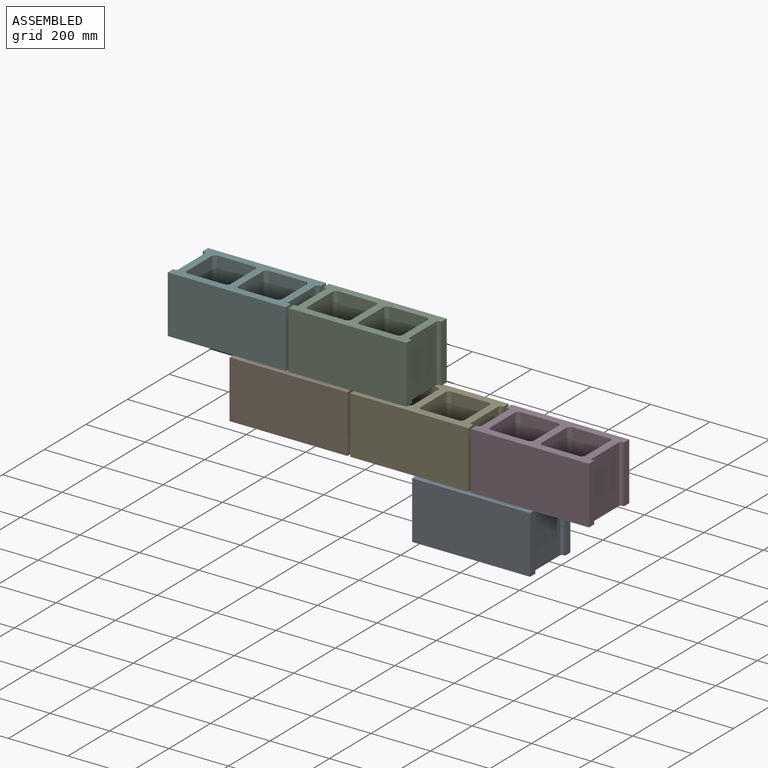
[diagram: assembled view]
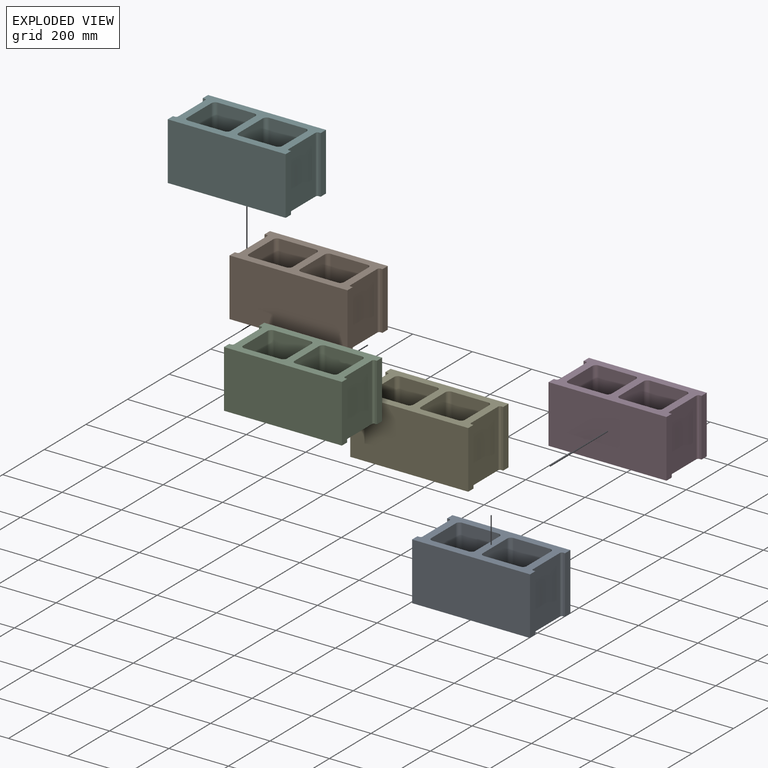
[diagram: exploded view]
GUIDED TOUR — MATED ASSEMBLY (Onshape document ac5938884970fd43bcc23c59, AutoMate assembly ac5938884970fd43bcc23c59_a05309ed8d6b21d57b8105df_1512f13c86c5d0458d538dba_default)

This assembly has 6 components, labeled P0..P5 below (a component is one placed occurrence of a part; the same part can appear more than once), held together by 5 mates. A mate is a constraint between two components; its type names the relative motion it leaves free:
  FASTENED — locks the two components together rigidly (no relative motion).
Axis/direction vectors are unit vectors and 'through' points are millimeter coordinates, both in the assembly's world frame.

MATES
  1. FASTENED "Fastened 2": P2 <-> P5, direction (0.000, -1.000, 0.000) through (18.18, -79.94, 115.96) mm
  2. FASTENED "Fastened 2": P3 <-> P4, direction (0.000, -1.000, 0.000) through (632.54, -79.94, -87.24) mm
  3. FASTENED "Fastened 1": P4 <-> P0, direction (0.000, 0.000, -1.000) through (424.58, 113.73, -87.24) mm
  4. FASTENED "Fastened 1": P5 <-> P1, direction (0.000, 0.000, -1.000) through (-189.78, 113.73, 115.96) mm
  5. FASTENED "Fastened 3": P4 <-> P1, direction (0.000, -1.000, 0.000) through (226.14, -79.94, 106.44) mm

ASSEMBLY ORDER
  1. P4 — the base component [order verified]
  2. P1 [order verified]
  3. P2 [order verified]
  4. P5 [order verified]
  5. P3 [order verified]
  6. P0 [order verified]
Order-tag legend:
  [order verified] — this step's position reverses a verified removal order: the component was checked to insert without passing through the ones already placed.

Of the 6 components, 6 carry the full construction recipe — the FeatureScript program that regenerates the part's solid from scratch; the rest are supplied as boundary geometry only.
Each toured component is shown spotlighted twice — in the assembled view, then in the exploded view, where a leader line traces a displaced component back to its assembled socket (saturated green if recipe-attached, orange if geometry-only; every other component desaturated gray) — followed by its recipe or geometry summary and the mates that hold it.
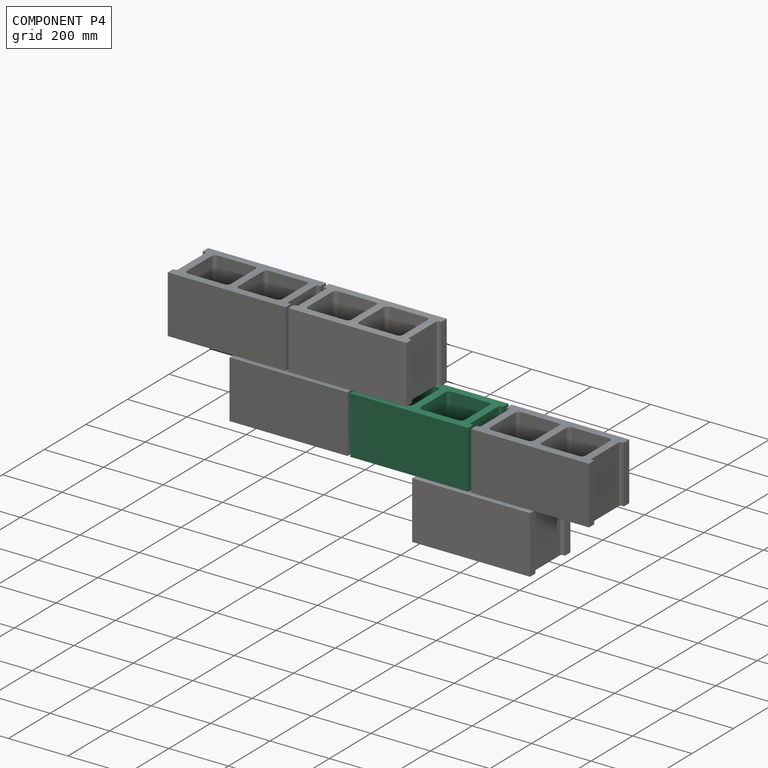
[diagram: component P4 — assembled]
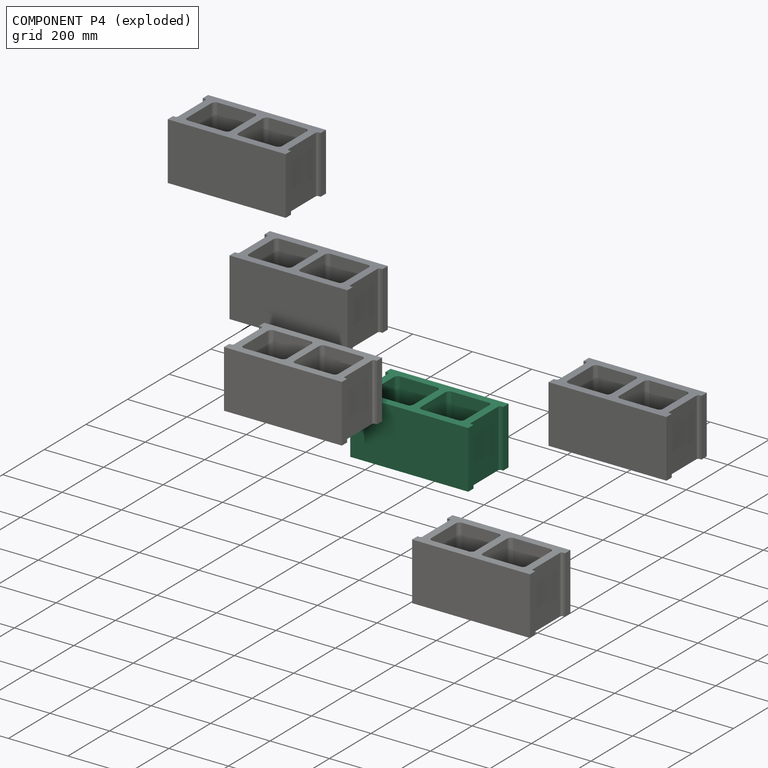
[diagram: component P4 — exploded]
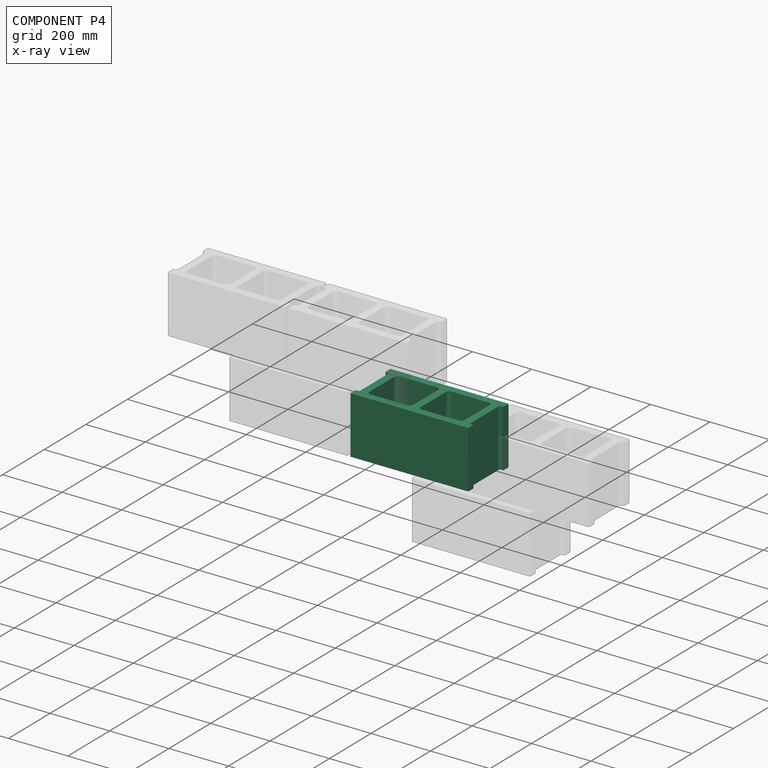
[diagram: component P4 — x-ray view]
COMPONENT P4 — same part as P0 (CADFS 00204169); its construction recipe is shown at P0.
Held by: FASTENED mate "Fastened 2" to P3; FASTENED mate "Fastened 1" to P0; FASTENED mate "Fastened 3" to P1.
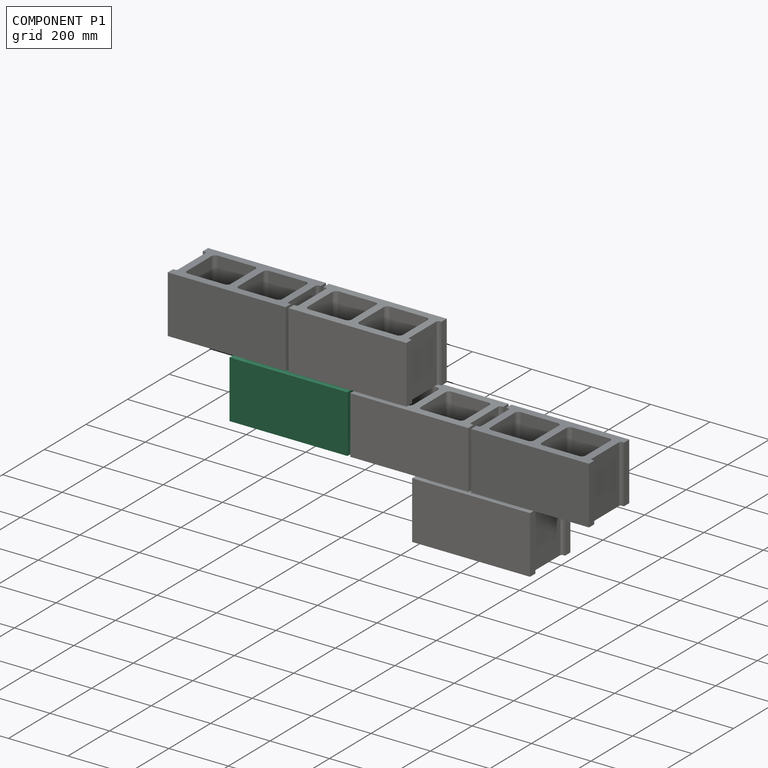
[diagram: component P1 — assembled]
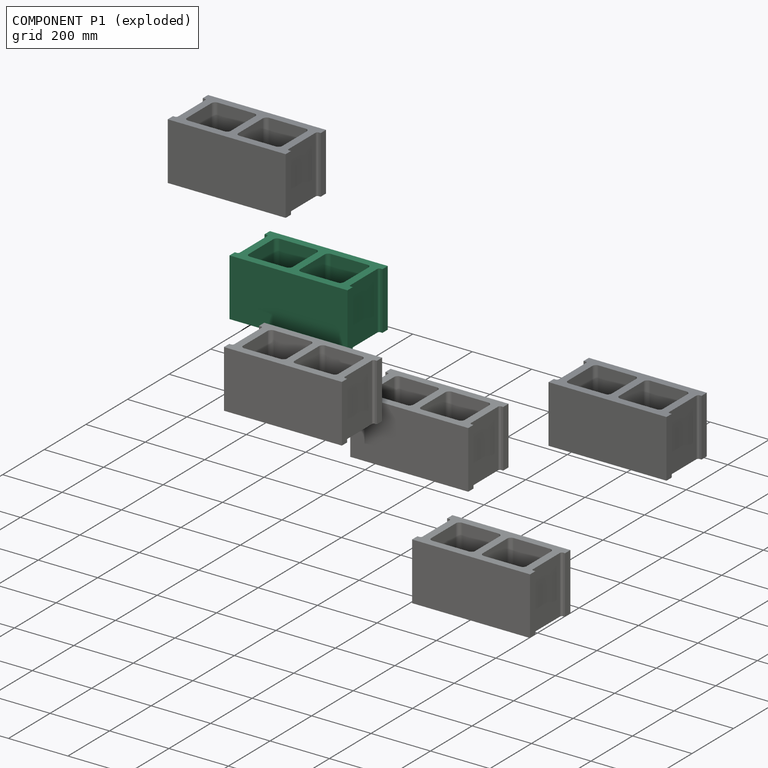
[diagram: component P1 — exploded]
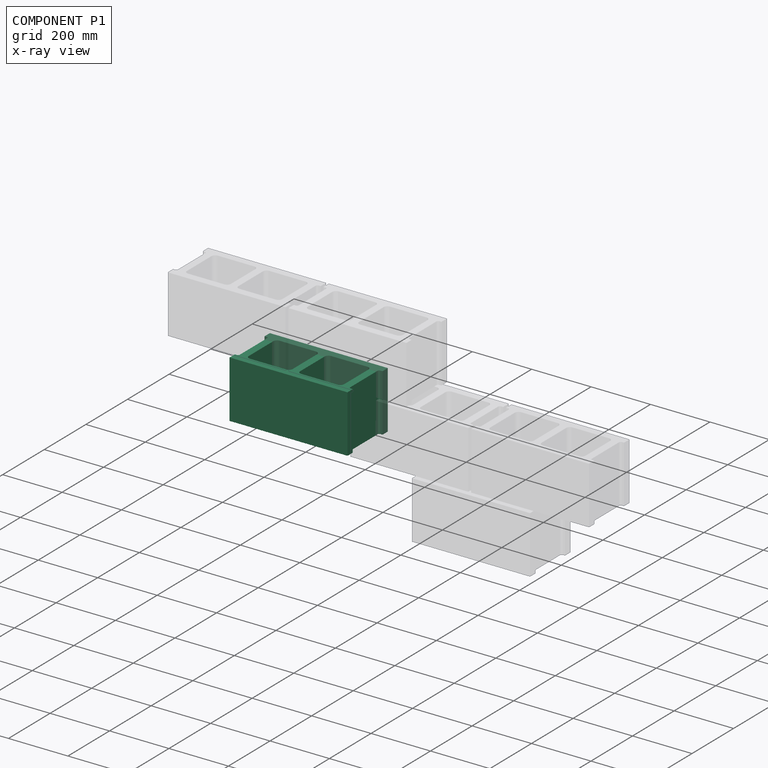
[diagram: component P1 — x-ray view]
COMPONENT P1 — same part as P0 (CADFS 00204169); its construction recipe is shown at P0.
Held by: FASTENED mate "Fastened 1" to P5; FASTENED mate "Fastened 3" to P4.
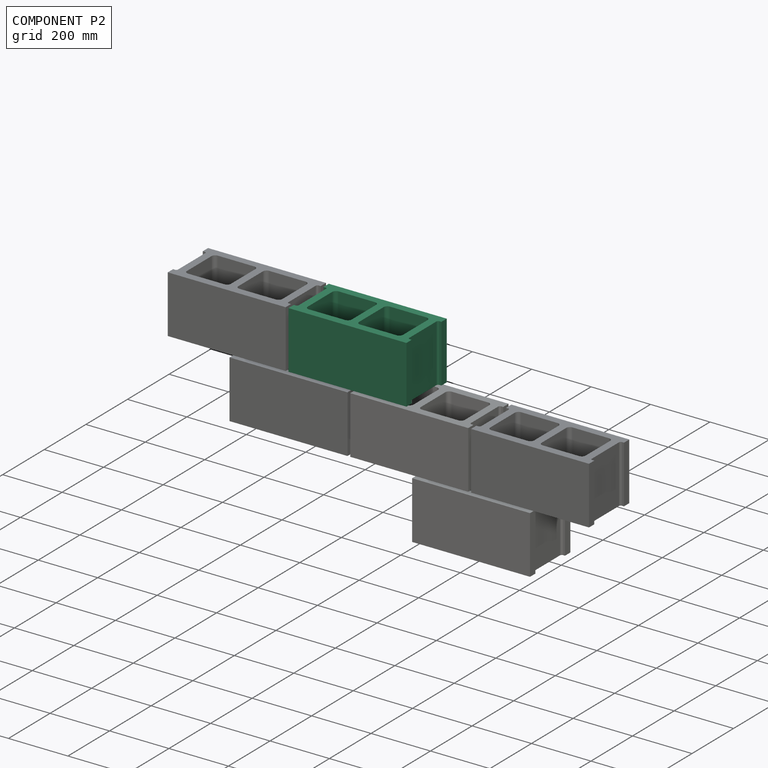
[diagram: component P2 — assembled]
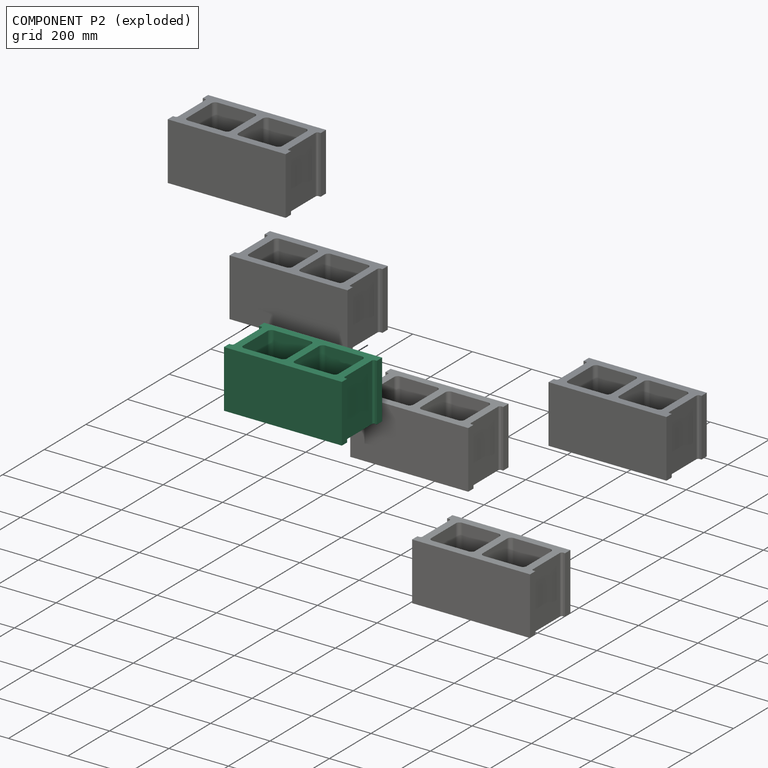
[diagram: component P2 — exploded]
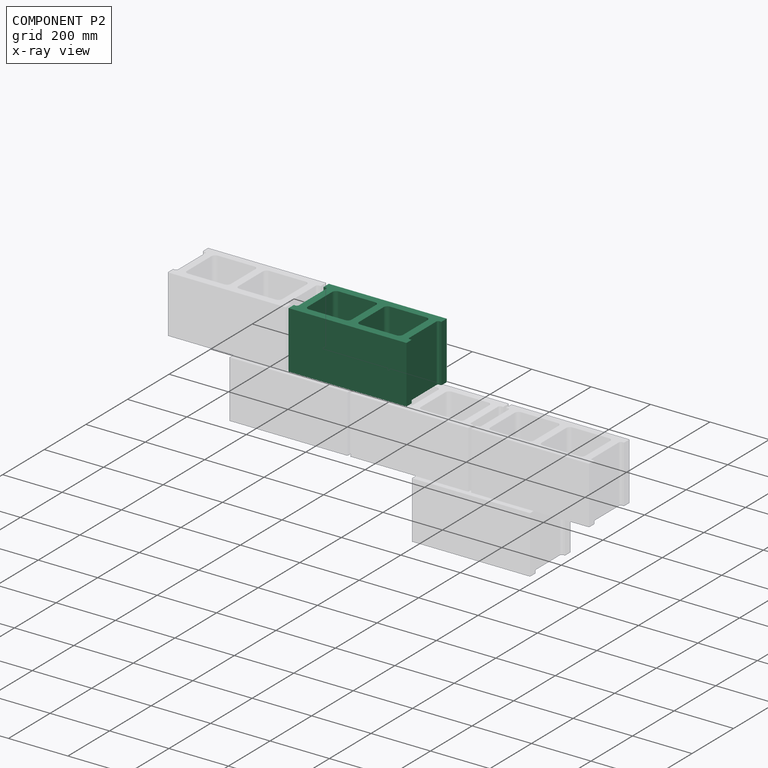
[diagram: component P2 — x-ray view]
COMPONENT P2 — same part as P0 (CADFS 00204169); its construction recipe is shown at P0.
Held by: FASTENED mate "Fastened 2" to P5.
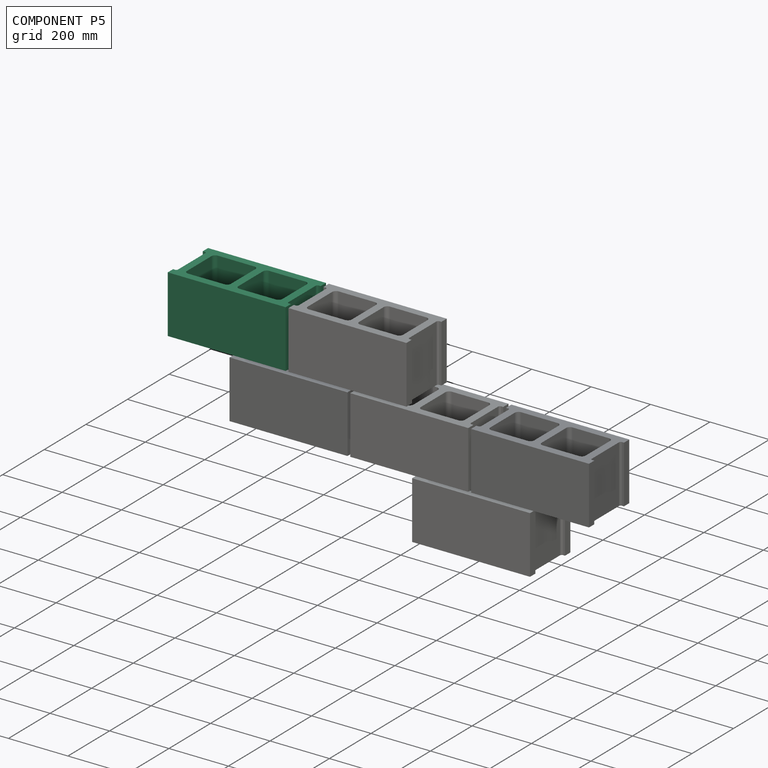
[diagram: component P5 — assembled]
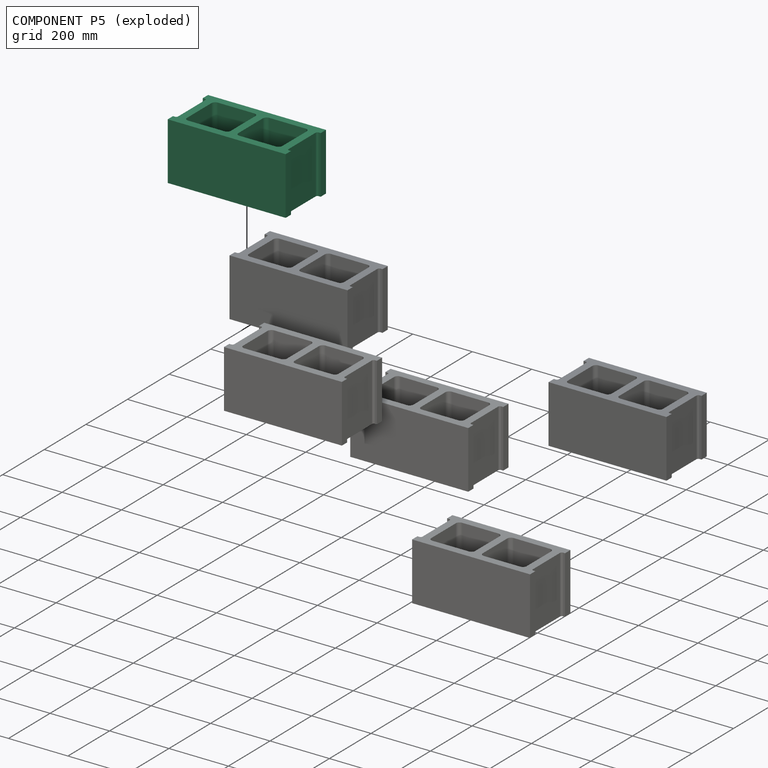
[diagram: component P5 — exploded]
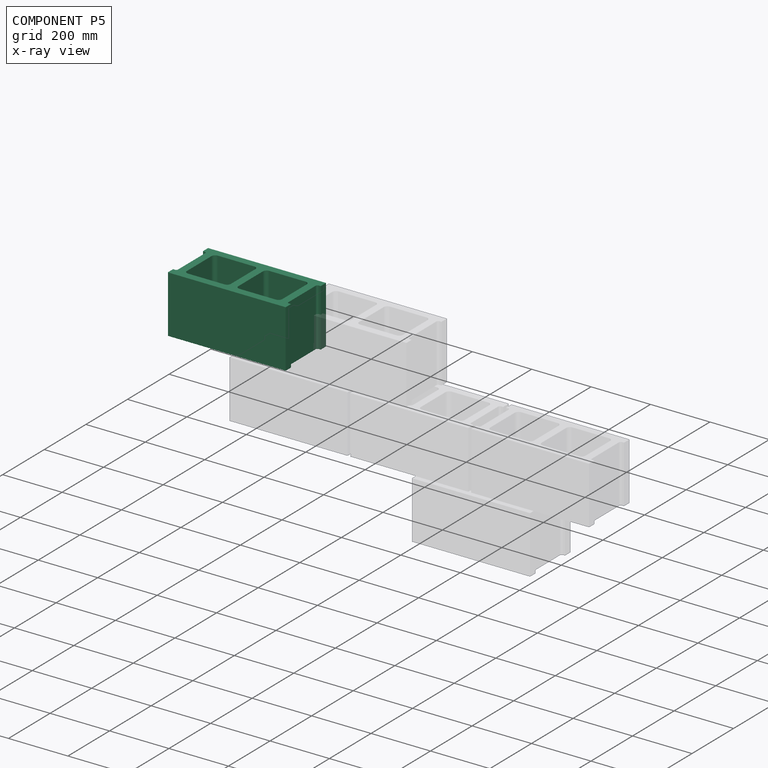
[diagram: component P5 — x-ray view]
COMPONENT P5 — same part as P0 (CADFS 00204169); its construction recipe is shown at P0.
Held by: FASTENED mate "Fastened 2" to P2; FASTENED mate "Fastened 1" to P1.
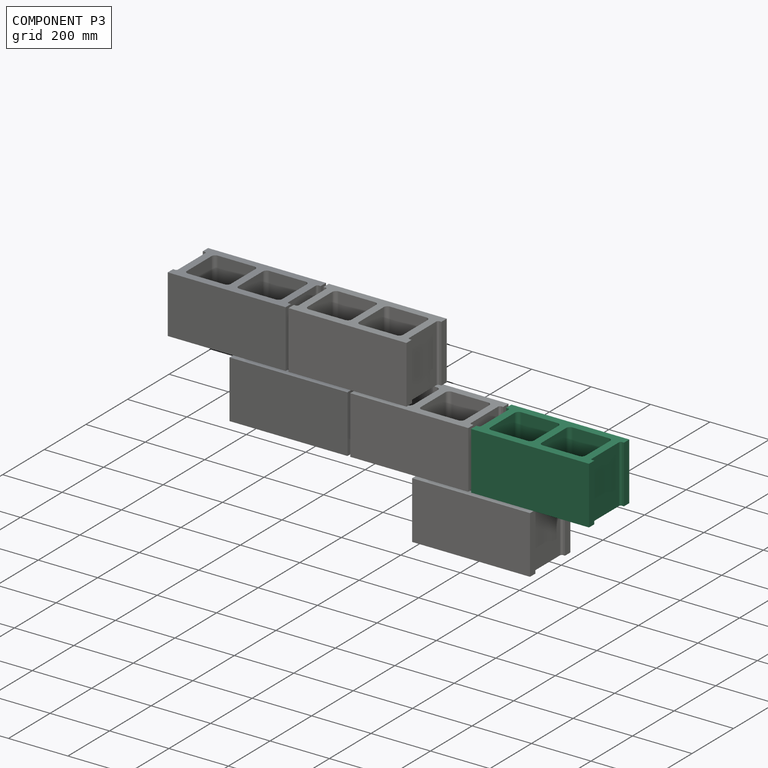
[diagram: component P3 — assembled]
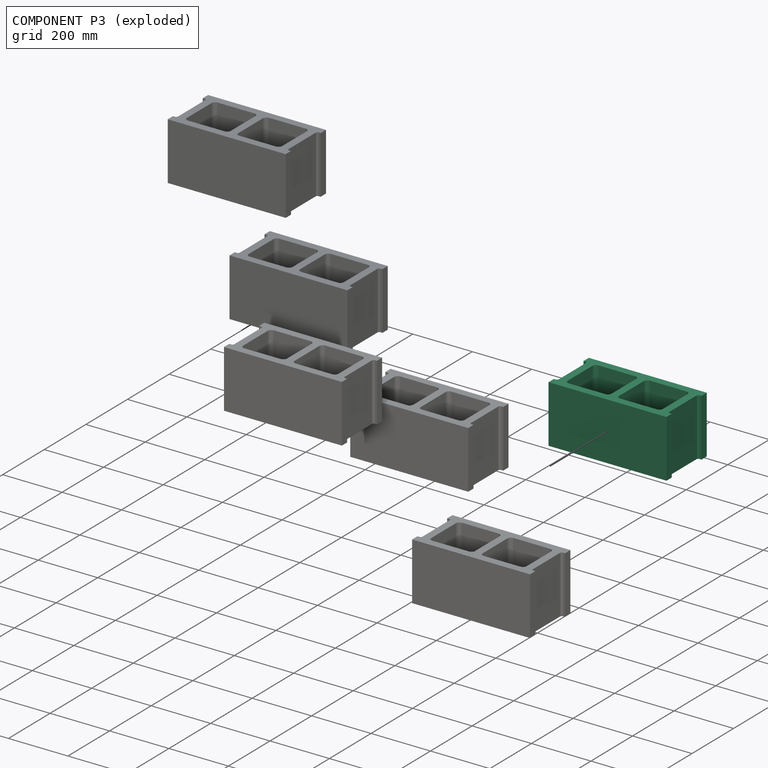
[diagram: component P3 — exploded]
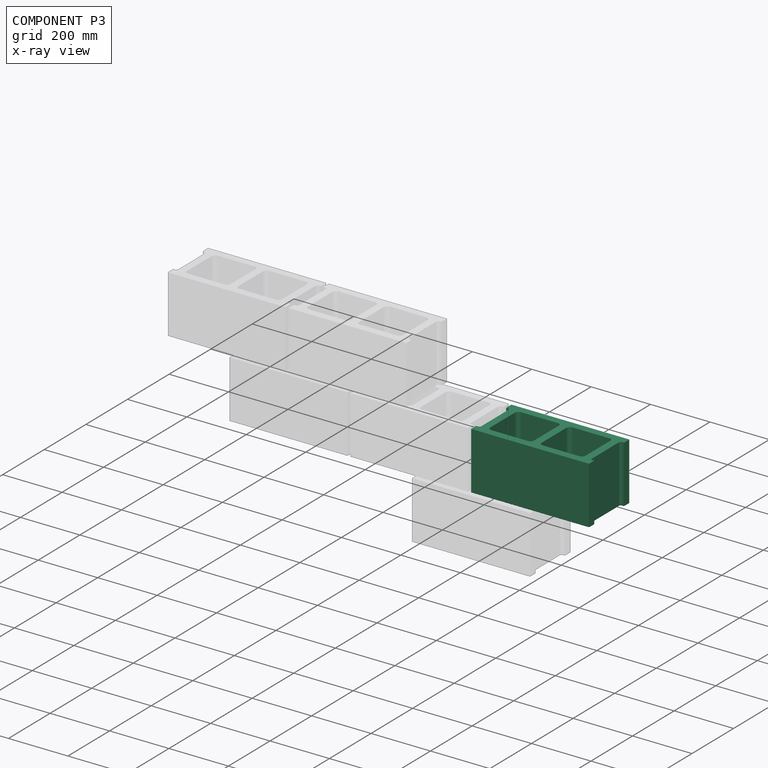
[diagram: component P3 — x-ray view]
COMPONENT P3 — same part as P0 (CADFS 00204169); its construction recipe is shown at P0.
Held by: FASTENED mate "Fastened 2" to P4.
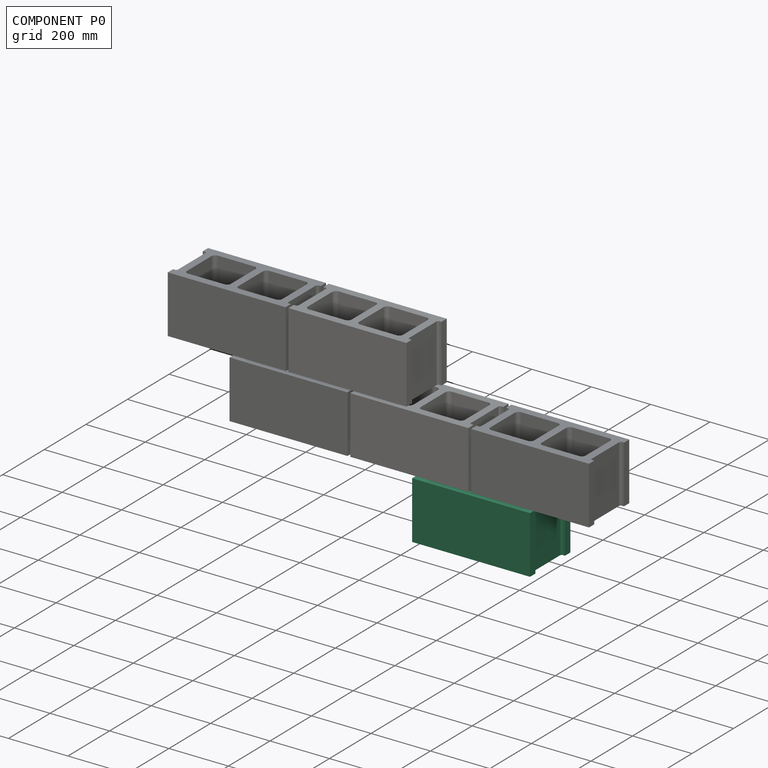
[diagram: component P0 — assembled]
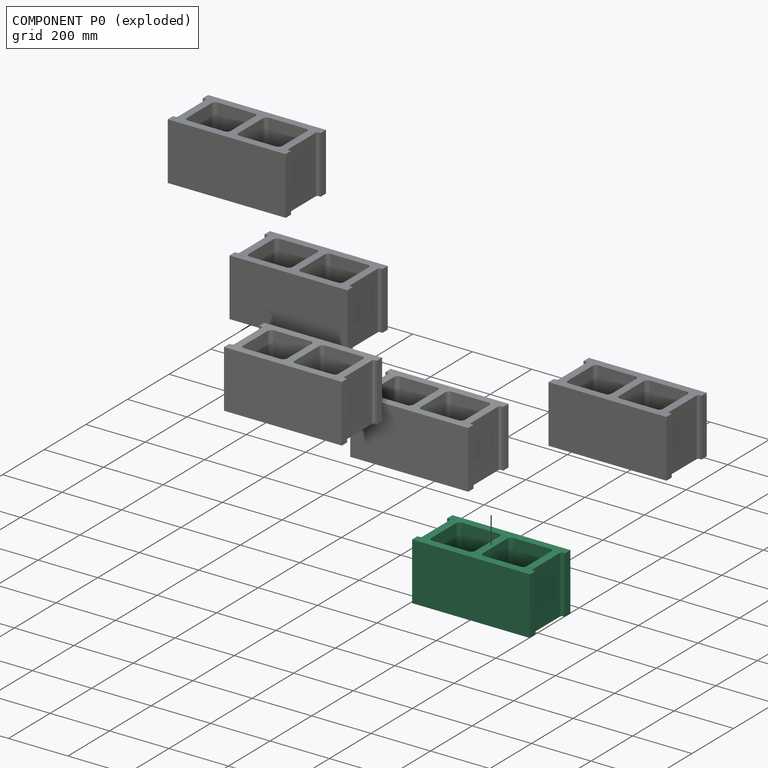
[diagram: component P0 — exploded]
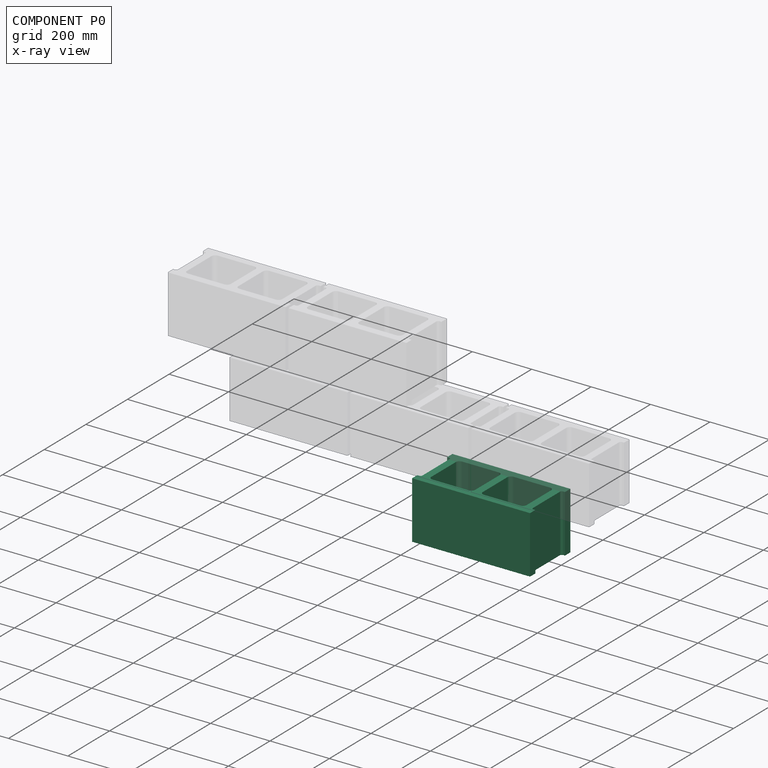
[diagram: component P0 — x-ray view]
COMPONENT P0 — recipe-attached (CADFS 00204169, mesh-verified: the recipe's output STEP matches this component's geometry to below the mesh-comparison resolution (tessellation chordal tolerance ~0.723 mm)).
Held by: FASTENED mate "Fastened 1" to P4.
Construction recipe (FeatureScript — the CAD program that rebuilds this solid; sketch coordinates are in the units given by the * unit suffixes, e.g. mm):

FeatureScript 1511;
import(path : "onshape/std/geometry.fs", version : "1511.0");
import(path : "onshape/std/common.fs", version : "1511.0");
const mm = millimeter;
const VERTEX = EntityType.VERTEX;
const EDGE = EntityType.EDGE;
const FACE = EntityType.FACE;
const BODY = EntityType.BODY;
function v(x, y){return vector(x, y);}
function OD(order){return orderDisambiguation(order);}
function OSD(set){return originalSetDisambiguation(set);}
function TD(topology){return topologyDisambiguation(topology);}
function TDD(query){return trueDependencyDisambiguation(query);}
function sQuery(a, b, c) {return sketchEntityQuery(a, b, c);}

annotation { "Feature Type Name" : "Feature", "Feature Type Description" : "" }
export const myFeature = defineFeature(function(context is Context, id is Id, definition is map)
    precondition{}
    {
        {
            var Q0;
            Q0=qCreatedBy(makeId("Top.planeOp"),FACE);
            var sketch = newSketch(context, id + "F0", { "sketchPlane" : qUnion([Q0])});
            skLineSegment(sketch, "E0", {"start": v(0, 0) * mm, "end": v(0, -25.4) * mm});
            skLineSegment(sketch, "E1", {"start": v(0, -193.67) * mm, "end": v(396.88, -193.67) * mm});
            skLineSegment(sketch, "E2", {"start": v(396.88, 0) * mm, "end": v(0, 0) * mm});
            skLineSegment(sketch, "E3.0", {"start": v(6.35, -25.4) * mm, "end": v(0, -25.4) * mm});
            skLineSegment(sketch, "E4.0", {"start": v(38.1, -96.84) * mm, "end": v(38.1, -155.58) * mm});
            skLineSegment(sketch, "E5.0", {"start": v(0, -168.28) * mm, "end": v(6.35, -168.28) * mm});
            skLineSegment(sketch, "E6.0", {"start": v(185.74, -38.1) * mm, "end": v(185.74, -155.58) * mm});
            skLineSegment(sketch, "E7.0", {"start": v(12.7, -31.75) * mm, "end": v(12.7, -161.93) * mm});
            skLineSegment(sketch, "E8", {"start": v(198.44, 0) * mm, "end": v(198.44, -193.67) * mm, "construction": true});
            skLineSegment(sketch, "E9", {"start": v(0, -96.84) * mm, "end": v(198.44, -96.84) * mm, "construction": true});
            skArc(sketch, "E10.filletArc", {"start": v(12.7, -31.75) * mm, "mid": v(10.84, -27.26) * mm, "end": v(6.35, -25.4) * mm});
            skArc(sketch, "E11.filletArc", {"start": v(6.35, -168.28) * mm, "mid": v(10.84, -166.42) * mm, "end": v(12.7, -161.93) * mm});
            skLineSegment(sketch, "E12", {"start": v(50.8, -25.4) * mm, "end": v(173.04, -25.4) * mm});
            skLineSegment(sketch, "E13", {"start": v(50.8, -168.28) * mm, "end": v(173.04, -168.28) * mm});
            skLineSegment(sketch, "E14", {"start": v(38.1, -96.84) * mm, "end": v(38.1, -38.1) * mm});
            skArc(sketch, "E15.filletArc", {"start": v(50.8, -25.4) * mm, "mid": v(41.82, -29.12) * mm, "end": v(38.1, -38.1) * mm});
            skArc(sketch, "E16.filletArc", {"start": v(38.1, -155.58) * mm, "mid": v(41.82, -164.56) * mm, "end": v(50.8, -168.28) * mm});
            skLineSegment(sketch, "E17.trimOffspring", {"start": v(0, -168.28) * mm, "end": v(0, -193.67) * mm});
            skArc(sketch, "E18.filletArc", {"start": v(185.74, -38.1) * mm, "mid": v(182.02, -29.12) * mm, "end": v(173.04, -25.4) * mm});
            skArc(sketch, "E19.filletArc", {"start": v(173.04, -168.28) * mm, "mid": v(182.02, -164.56) * mm, "end": v(185.74, -155.58) * mm});
            skArc(sketch, "E20.MirrorCS", {"start": v(390.53, -168.27) * mm, "mid": v(386.03, -166.42) * mm, "end": v(384.18, -161.92) * mm});
            skLineSegment(sketch, "E21.MirrorCS", {"start": v(396.88, -168.27) * mm, "end": v(390.53, -168.27) * mm});
            skArc(sketch, "E22.MirrorCS", {"start": v(384.18, -31.75) * mm, "mid": v(386.03, -27.26) * mm, "end": v(390.53, -25.4) * mm});
            skLineSegment(sketch, "E23.MirrorCS", {"start": v(390.53, -25.4) * mm, "end": v(396.88, -25.4) * mm});
            skArc(sketch, "E24.MirrorCS", {"start": v(358.78, -155.57) * mm, "mid": v(355.06, -164.56) * mm, "end": v(346.08, -168.27) * mm});
            skLineSegment(sketch, "E25.MirrorCS", {"start": v(346.08, -25.4) * mm, "end": v(223.84, -25.4) * mm});
            skLineSegment(sketch, "E26.MirrorCS", {"start": v(358.78, -96.84) * mm, "end": v(358.78, -38.1) * mm});
            skLineSegment(sketch, "E27.MirrorCS", {"start": v(396.88, 0) * mm, "end": v(396.88, -25.4) * mm});
            skArc(sketch, "E28.MirrorCS", {"start": v(346.08, -25.4) * mm, "mid": v(355.06, -29.12) * mm, "end": v(358.78, -38.1) * mm});
            skLineSegment(sketch, "E29.MirrorCS", {"start": v(384.18, -31.75) * mm, "end": v(384.18, -161.92) * mm});
            skArc(sketch, "E30.MirrorCS", {"start": v(223.84, -168.28) * mm, "mid": v(214.86, -164.56) * mm, "end": v(211.14, -155.58) * mm});
            skLineSegment(sketch, "E31.MirrorCS", {"start": v(358.78, -96.84) * mm, "end": v(358.78, -155.57) * mm});
            skArc(sketch, "E32.MirrorCS", {"start": v(211.14, -38.1) * mm, "mid": v(214.86, -29.12) * mm, "end": v(223.84, -25.4) * mm});
            skLineSegment(sketch, "E33.MirrorCS", {"start": v(346.08, -168.27) * mm, "end": v(223.84, -168.27) * mm});
            skLineSegment(sketch, "E34.MirrorCS", {"start": v(211.14, -38.1) * mm, "end": v(211.14, -155.58) * mm});
            skLineSegment(sketch, "E35.MirrorCS", {"start": v(396.88, -168.27) * mm, "end": v(396.88, -193.67) * mm});
            skSolve(sketch);
        }
        {
            var Q0;
            Q0=makeQuery(id+"F0.imprint","IMPRINT",FACE,{"disambiguationData":[TD([[makeQuery(id+"F0.imprint","IMPRINT",EDGE,{"derivedFrom":sQuery(id+"F0.wireOp",EDGE,"E0")}),1.0]])]});
            extrude(context, id + "F1", {"entities" : qUnion([Q0]), "depth" : 193.67 * mm});
        }
    });
PROVENANCE & LICENSES
Assembly (occurrences, transforms, mates, per-part STEP geometry): AutoMate dataset, Zenodo record 7776208, CC0.
Construction recipes: CADFS (HuggingFace VladPyatov/CADFS, CC-BY-4.0, layered over the ABC dataset), FeatureScript reconstruction programs keyed by ABC model id.
Join: ABC meta listings map ABC model id -> Onshape documentId; within a shared document, parts are matched by geometric signature (bounding-box dims + volume at 0.1% relative tolerance, exact B-rep face/solid counts).
Verification: 6 of this assembly's 6 components carry a recipe attachment, and every attachment is mesh-verified: the CADFS STEP and the AutoMate member STEP were compared as meshes in their shared local frame (symmetric sampled-point-to-mesh distance); worst across the 6 attachments: below the mesh-comparison resolution (tessellation chordal tolerance ~0.723 mm) on a 482 mm part.
Renders: orthographic iso camera (az 35 / el 25); the floor grid conveys scale (grid pitch printed in each image; no ruler). In the exploded view each component is displaced by its stored offset vector: the offsets alone carry the explosion direction (mate normal/axis signs are not orientation cues and do not encode it), and separation distances are assigned per mate-chain, not proportionally to assembly-order depth.
